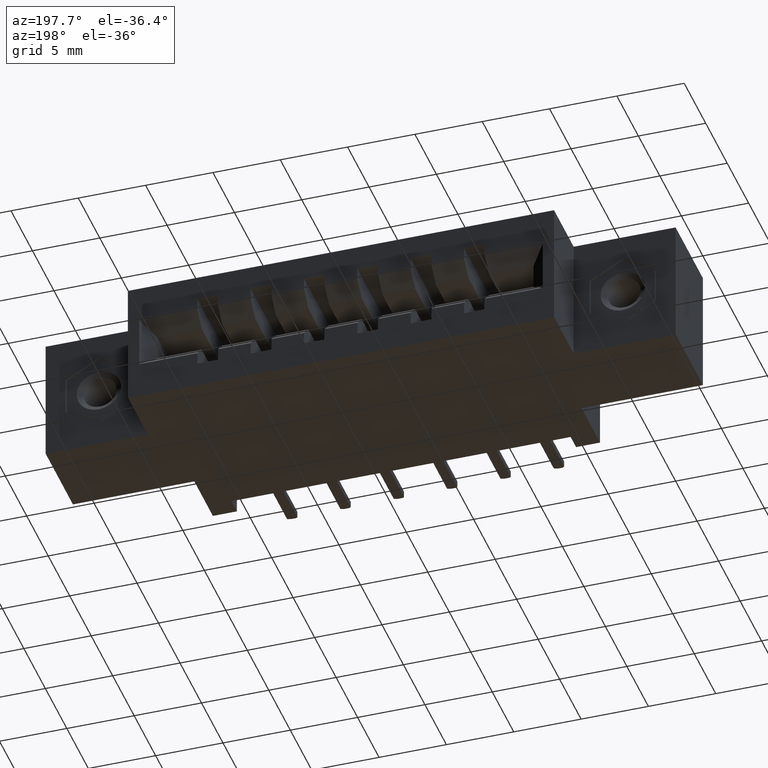
[diagram: clean part render]
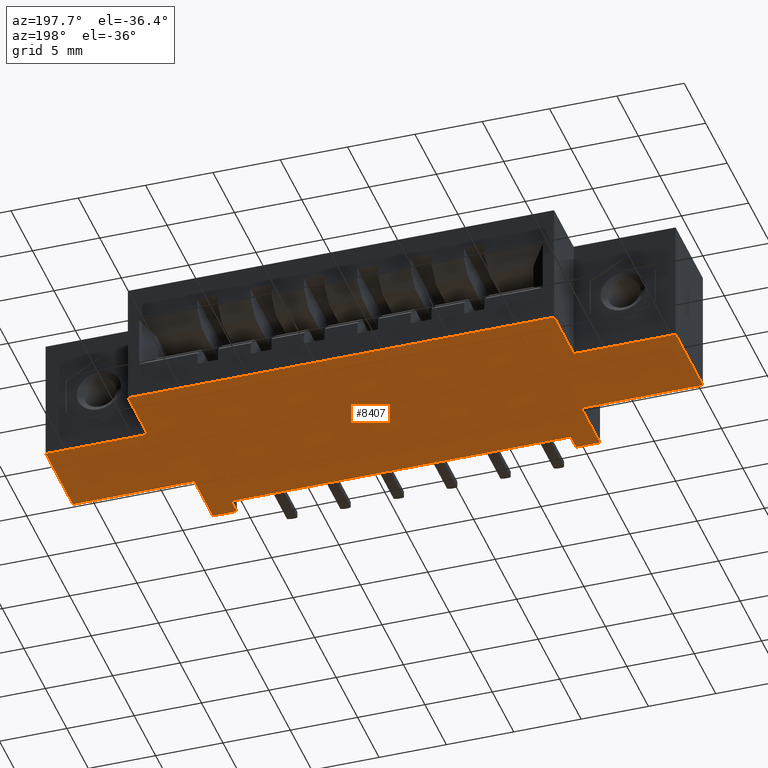
[diagram: same view with one face highlighted and labeled with its STEP entity id]
A machine part, auxiliary view. The second image highlights one B-rep face of the part: STEP entity #8407.
In plain terms, the highlighted planar face has unit normal (-0, 0, 1).
Its self-contained STEP definition (entity closure, byte-faithful):
#76 = DIRECTION ( 'NONE',  ( 1.000000000000000000, 0.0000000000000000000, 7.415439722215696900E-017 ) ) ;
#80 = FACE_OUTER_BOUND ( 'NONE', #3978, .T. ) ;
#150 = DIRECTION ( 'NONE',  ( -1.000000000000000000, -0.0000000000000000000, -0.0000000000000000000 ) ) ;
#321 = VECTOR ( 'NONE', #6890, 39.37007874015748100 ) ;
#381 = VECTOR ( 'NONE', #8471, 39.37007874015748100 ) ;
#458 = ORIENTED_EDGE ( 'NONE', *, *, #7511, .T. ) ;
#558 = CARTESIAN_POINT ( 'NONE',  ( 0.0000000000000000000, 0.1699999999999999800, -0.3700000000000001600 ) ) ;
#718 = CARTESIAN_POINT ( 'NONE',  ( 0.3550000000000000400, 0.1699999999999999800, -0.3700000000000000000 ) ) ;
#780 = ORIENTED_EDGE ( 'NONE', *, *, #2620, .F. ) ;
#869 = CARTESIAN_POINT ( 'NONE',  ( 1.842000000000000700, 0.4199999999999999800, -0.3700000000000000000 ) ) ;
#1005 = LINE ( 'NONE', #718, #8203 ) ;
#1210 = DIRECTION ( 'NONE',  ( -0.0000000000000000000, -1.000000000000000000, -0.0000000000000000000 ) ) ;
#1465 = VECTOR ( 'NONE', #3910, 39.37007874015748100 ) ;
#1526 = VERTEX_POINT ( 'NONE', #7257 ) ;
#1684 = LINE ( 'NONE', #6820, #8817 ) ;
#1771 = EDGE_CURVE ( 'NONE', #5774, #8925, #1684, .T. ) ;
#1842 = DIRECTION ( 'NONE',  ( -1.000000000000000000, -0.0000000000000000000, -7.415439722215695600E-017 ) ) ;
#1861 = VECTOR ( 'NONE', #2613, 39.37007874015748100 ) ;
#1870 = CARTESIAN_POINT ( 'NONE',  ( 1.487000000000000800, 0.1699999999999999800, -0.3699999999999998800 ) ) ;
#2023 = CARTESIAN_POINT ( 'NONE',  ( 1.417000000000000700, 0.05000000000000000300, -0.3700000000000000000 ) ) ;
#2490 = PLANE ( 'NONE',  #6606 ) ;
#2521 = ORIENTED_EDGE ( 'NONE', *, *, #10101, .F. ) ;
#2613 = DIRECTION ( 'NONE',  ( -1.000000000000000000, -0.0000000000000000000, -7.415439722215695600E-017 ) ) ;
#2620 = EDGE_CURVE ( 'NONE', #3644, #2726, #7770, .T. ) ;
#2648 = ORIENTED_EDGE ( 'NONE', *, *, #3039, .F. ) ;
#2677 = EDGE_CURVE ( 'NONE', #1526, #5959, #7138, .T. ) ;
#2726 = VERTEX_POINT ( 'NONE', #10320 ) ;
#2729 = VERTEX_POINT ( 'NONE', #8773 ) ;
#2965 = CARTESIAN_POINT ( 'NONE',  ( 0.2980000000000001000, 0.4199999999999999800, -0.3700000000000001600 ) ) ;
#2991 = LINE ( 'NONE', #6913, #381 ) ;
#3031 = VERTEX_POINT ( 'NONE', #3677 ) ;
#3039 = EDGE_CURVE ( 'NONE', #2729, #8627, #5358, .T. ) ;
#3086 = CARTESIAN_POINT ( 'NONE',  ( 1.544000000000000700, 0.4199999999999999800, -0.3699999999999999400 ) ) ;
#3135 = VECTOR ( 'NONE', #10192, 39.37007874015748100 ) ;
#3315 = EDGE_CURVE ( 'NONE', #6333, #1526, #8263, .T. ) ;
#3358 = VERTEX_POINT ( 'NONE', #558 ) ;
#3434 = ORIENTED_EDGE ( 'NONE', *, *, #9555, .F. ) ;
#3644 = VERTEX_POINT ( 'NONE', #2965 ) ;
#3655 = VERTEX_POINT ( 'NONE', #7792 ) ;
#3674 = ORIENTED_EDGE ( 'NONE', *, *, #5906, .T. ) ;
#3677 = CARTESIAN_POINT ( 'NONE',  ( 1.487000000000000800, 0.0000000000000000000, -0.3699999999999998800 ) ) ;
#3910 = DIRECTION ( 'NONE',  ( -1.000000000000000000, -0.0000000000000000000, -7.415439722215695600E-017 ) ) ;
#3978 = EDGE_LOOP ( 'NONE', ( #2648, #9771, #5651, #6543, #6597, #458, #8891, #4461, #6308, #2521, #780, #3674, #4080, #3434, #6051, #6809 ) ) ;
#4080 = ORIENTED_EDGE ( 'NONE', *, *, #1771, .F. ) ;
#4108 = VERTEX_POINT ( 'NONE', #3086 ) ;
#4142 = LINE ( 'NONE', #6732, #9619 ) ;
#4150 = VECTOR ( 'NONE', #6415, 39.37007874015748100 ) ;
#4158 = EDGE_CURVE ( 'NONE', #3031, #5959, #4818, .T. ) ;
#4392 = VECTOR ( 'NONE', #8545, 39.37007874015748100 ) ;
#4461 = ORIENTED_EDGE ( 'NONE', *, *, #10078, .F. ) ;
#4680 = VERTEX_POINT ( 'NONE', #5805 ) ;
#4818 = LINE ( 'NONE', #7901, #1465 ) ;
#4840 = EDGE_CURVE ( 'NONE', #3655, #7115, #9409, .T. ) ;
#5003 = VECTOR ( 'NONE', #8551, 39.37007874015748100 ) ;
#5036 = LINE ( 'NONE', #9754, #4150 ) ;
#5264 = CARTESIAN_POINT ( 'NONE',  ( 0.0000000000000000000, 0.5999999999999999800, -0.3700000000000001600 ) ) ;
#5358 = LINE ( 'NONE', #9343, #321 ) ;
#5540 = EDGE_CURVE ( 'NONE', #4680, #4108, #7446, .T. ) ;
#5622 = VECTOR ( 'NONE', #150, 39.37007874015748100 ) ;
#5651 = ORIENTED_EDGE ( 'NONE', *, *, #4158, .T. ) ;
#5742 = VECTOR ( 'NONE', #8720, 39.37007874015748100 ) ;
#5774 = VERTEX_POINT ( 'NONE', #9950 ) ;
#5805 = CARTESIAN_POINT ( 'NONE',  ( 1.842000000000000700, 0.4200000000000000400, -0.3700000000000000000 ) ) ;
#5906 = EDGE_CURVE ( 'NONE', #3644, #8925, #2991, .T. ) ;
#5959 = VERTEX_POINT ( 'NONE', #6035 ) ;
#6035 = CARTESIAN_POINT ( 'NONE',  ( 1.417000000000000700, 0.0000000000000000000, -0.3700000000000000000 ) ) ;
#6051 = ORIENTED_EDGE ( 'NONE', *, *, #5540, .F. ) ;
#6104 = CARTESIAN_POINT ( 'NONE',  ( 1.842000000000000700, 0.1699999999999999800, -0.3699999999999998300 ) ) ;
#6193 = VECTOR ( 'NONE', #6771, 39.37007874015748100 ) ;
#6227 = EDGE_CURVE ( 'NONE', #4680, #8627, #5036, .T. ) ;
#6308 = ORIENTED_EDGE ( 'NONE', *, *, #8287, .F. ) ;
#6333 = VERTEX_POINT ( 'NONE', #7215 ) ;
#6415 = DIRECTION ( 'NONE',  ( -0.0000000000000000000, -1.000000000000000000, -0.0000000000000000000 ) ) ;
#6488 = CARTESIAN_POINT ( 'NONE',  ( 1.544000000000000700, 0.4199999999999999800, -0.3699999999999999400 ) ) ;
#6543 = ORIENTED_EDGE ( 'NONE', *, *, #2677, .F. ) ;
#6567 = DIRECTION ( 'NONE',  ( -7.415439722215696900E-017, 0.0000000000000000000, 1.000000000000000000 ) ) ;
#6597 = ORIENTED_EDGE ( 'NONE', *, *, #3315, .F. ) ;
#6606 = AXIS2_PLACEMENT_3D ( 'NONE', #9002, #6567, #76 ) ;
#6732 = CARTESIAN_POINT ( 'NONE',  ( 0.4249999999999999900, 0.05000000000000000300, -0.3700000000000000000 ) ) ;
#6771 = DIRECTION ( 'NONE',  ( -0.0000000000000000000, -1.000000000000000000, -0.0000000000000000000 ) ) ;
#6809 = ORIENTED_EDGE ( 'NONE', *, *, #6227, .T. ) ;
#6820 = CARTESIAN_POINT ( 'NONE',  ( 0.0000000000000000000, 0.5999999999999999800, -0.3700000000000001600 ) ) ;
#6890 = DIRECTION ( 'NONE',  ( 1.000000000000000000, -0.0000000000000000000, 1.923836615256523900E-016 ) ) ;
#6913 = CARTESIAN_POINT ( 'NONE',  ( 0.2980000000000001000, 0.4199999999999999800, -0.3700000000000001600 ) ) ;
#7115 = VERTEX_POINT ( 'NONE', #9176 ) ;
#7138 = LINE ( 'NONE', #2023, #5003 ) ;
#7215 = CARTESIAN_POINT ( 'NONE',  ( 0.4249999999999999900, 0.05000000000000000300, -0.3700000000000000000 ) ) ;
#7257 = CARTESIAN_POINT ( 'NONE',  ( 1.417000000000000700, 0.05000000000000000300, -0.3700000000000000000 ) ) ;
#7363 = CARTESIAN_POINT ( 'NONE',  ( 0.0000000000000000000, 0.4199999999999999800, -0.3700000000000001600 ) ) ;
#7446 = LINE ( 'NONE', #869, #3135 ) ;
#7470 = CARTESIAN_POINT ( 'NONE',  ( 0.0000000000000000000, 0.0000000000000000000, -0.3700000000000001600 ) ) ;
#7511 = EDGE_CURVE ( 'NONE', #6333, #3655, #4142, .T. ) ;
#7520 = CARTESIAN_POINT ( 'NONE',  ( 0.3550000000000000400, 0.1699999999999999800, -0.3700000000000000000 ) ) ;
#7546 = VECTOR ( 'NONE', #9659, 39.37007874015748100 ) ;
#7770 = LINE ( 'NONE', #7363, #5622 ) ;
#7792 = CARTESIAN_POINT ( 'NONE',  ( 0.4249999999999999900, 0.0000000000000000000, -0.3700000000000000000 ) ) ;
#7901 = CARTESIAN_POINT ( 'NONE',  ( 0.0000000000000000000, 0.0000000000000000000, -0.3700000000000001600 ) ) ;
#7938 = CARTESIAN_POINT ( 'NONE',  ( 0.2980000000000001000, 0.5999999999999999800, -0.3700000000000001600 ) ) ;
#8203 = VECTOR ( 'NONE', #8945, 39.37007874015748100 ) ;
#8219 = LINE ( 'NONE', #1870, #6193 ) ;
#8263 = LINE ( 'NONE', #10486, #5742 ) ;
#8287 = EDGE_CURVE ( 'NONE', #3358, #8474, #9878, .T. ) ;
#8407 = ADVANCED_FACE ( 'NONE', ( #80 ), #2490, .F. ) ;
#8471 = DIRECTION ( 'NONE',  ( -0.0000000000000000000, 1.000000000000000000, -0.0000000000000000000 ) ) ;
#8474 = VERTEX_POINT ( 'NONE', #7520 ) ;
#8545 = DIRECTION ( 'NONE',  ( -0.0000000000000000000, -1.000000000000000000, -0.0000000000000000000 ) ) ;
#8551 = DIRECTION ( 'NONE',  ( -0.0000000000000000000, -1.000000000000000000, -0.0000000000000000000 ) ) ;
#8569 = LINE ( 'NONE', #5264, #4392 ) ;
#8627 = VERTEX_POINT ( 'NONE', #6104 ) ;
#8720 = DIRECTION ( 'NONE',  ( 1.000000000000000000, 0.0000000000000000000, 0.0000000000000000000 ) ) ;
#8773 = CARTESIAN_POINT ( 'NONE',  ( 1.487000000000000800, 0.1699999999999999800, -0.3699999999999998800 ) ) ;
#8817 = VECTOR ( 'NONE', #1842, 39.37007874015748100 ) ;
#8891 = ORIENTED_EDGE ( 'NONE', *, *, #4840, .T. ) ;
#8925 = VERTEX_POINT ( 'NONE', #7938 ) ;
#8945 = DIRECTION ( 'NONE',  ( -0.0000000000000000000, -1.000000000000000000, -0.0000000000000000000 ) ) ;
#9002 = CARTESIAN_POINT ( 'NONE',  ( 0.0000000000000000000, 0.5999999999999999800, -0.3700000000000001600 ) ) ;
#9176 = CARTESIAN_POINT ( 'NONE',  ( 0.3550000000000000400, 0.0000000000000000000, -0.3700000000000001600 ) ) ;
#9343 = CARTESIAN_POINT ( 'NONE',  ( 1.842000000000000700, 0.1699999999999999800, -0.3699999999999998300 ) ) ;
#9381 = EDGE_CURVE ( 'NONE', #2729, #3031, #8219, .T. ) ;
#9393 = LINE ( 'NONE', #6488, #10026 ) ;
#9409 = LINE ( 'NONE', #7470, #1861 ) ;
#9555 = EDGE_CURVE ( 'NONE', #4108, #5774, #9393, .T. ) ;
#9619 = VECTOR ( 'NONE', #1210, 39.37007874015748100 ) ;
#9659 = DIRECTION ( 'NONE',  ( 1.000000000000000000, 0.0000000000000000000, 3.847673230513046400E-016 ) ) ;
#9754 = CARTESIAN_POINT ( 'NONE',  ( 1.842000000000000700, 0.5999999999999999800, -0.3700000000000000000 ) ) ;
#9771 = ORIENTED_EDGE ( 'NONE', *, *, #9381, .T. ) ;
#9878 = LINE ( 'NONE', #10499, #7546 ) ;
#9950 = CARTESIAN_POINT ( 'NONE',  ( 1.544000000000000700, 0.5999999999999999800, -0.3699999999999999400 ) ) ;
#10026 = VECTOR ( 'NONE', #10566, 39.37007874015748100 ) ;
#10078 = EDGE_CURVE ( 'NONE', #8474, #7115, #1005, .T. ) ;
#10101 = EDGE_CURVE ( 'NONE', #2726, #3358, #8569, .T. ) ;
#10192 = DIRECTION ( 'NONE',  ( -1.000000000000000000, 0.0000000000000000000, 2.291818786631094000E-016 ) ) ;
#10320 = CARTESIAN_POINT ( 'NONE',  ( 0.0000000000000000000, 0.4199999999999999800, -0.3700000000000001600 ) ) ;
#10486 = CARTESIAN_POINT ( 'NONE',  ( 0.4249999999999999900, 0.05000000000000000300, -0.3700000000000000000 ) ) ;
#10499 = CARTESIAN_POINT ( 'NONE',  ( 0.0000000000000000000, 0.1699999999999999800, -0.3700000000000001600 ) ) ;
#10566 = DIRECTION ( 'NONE',  ( -0.0000000000000000000, 1.000000000000000000, -0.0000000000000000000 ) ) ;